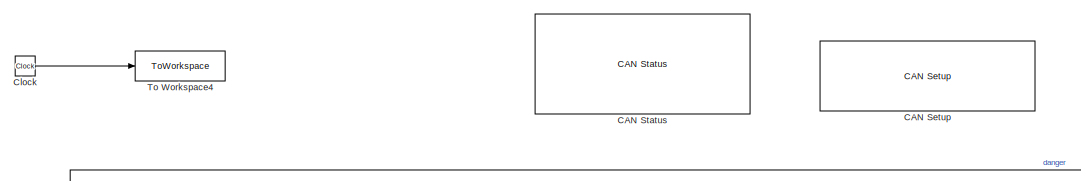
[diagram: root canvas - part 1/4, top center region]
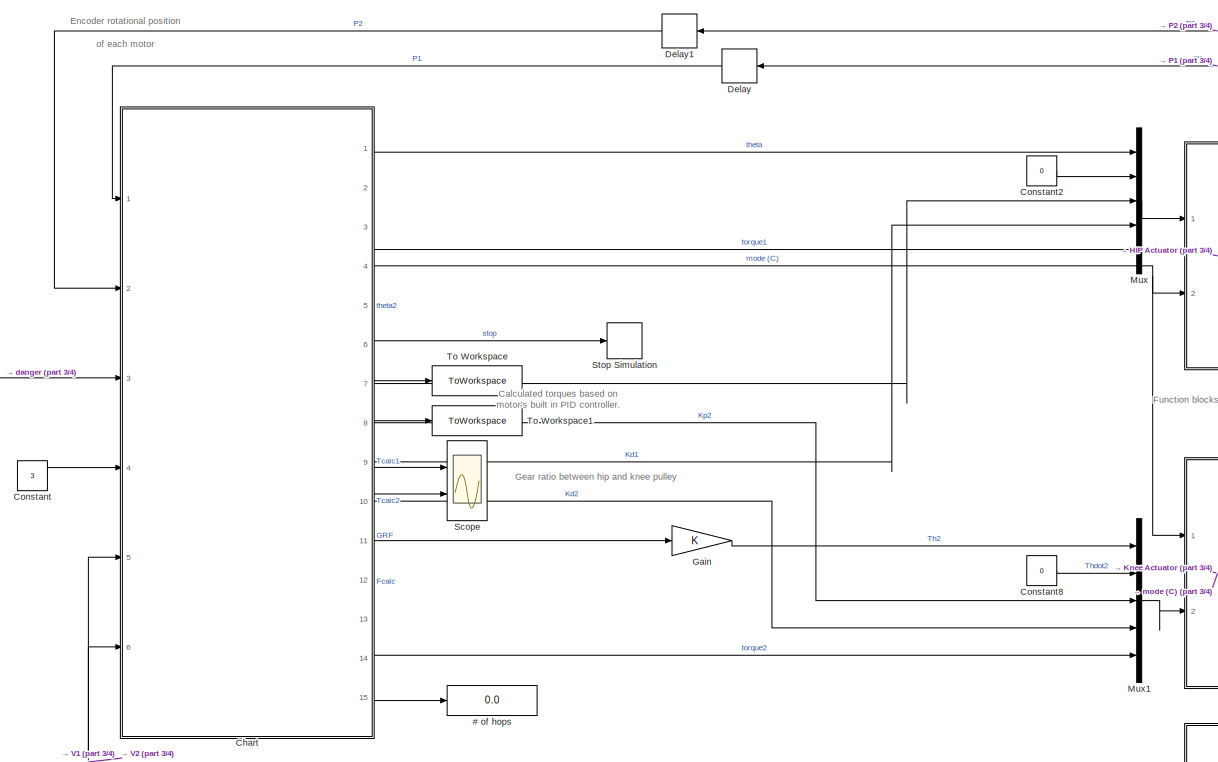
[diagram: root canvas - part 2/4, central region]
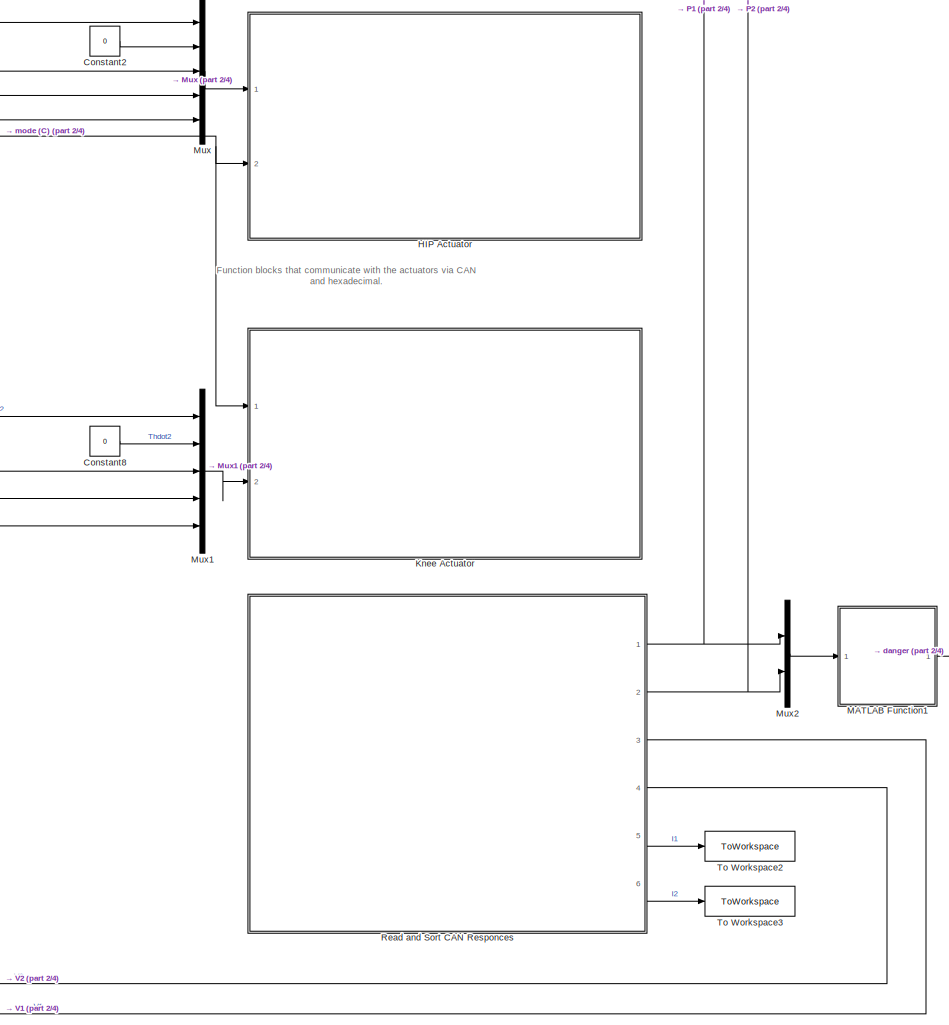
[diagram: root canvas - part 3/4, right side, full height]
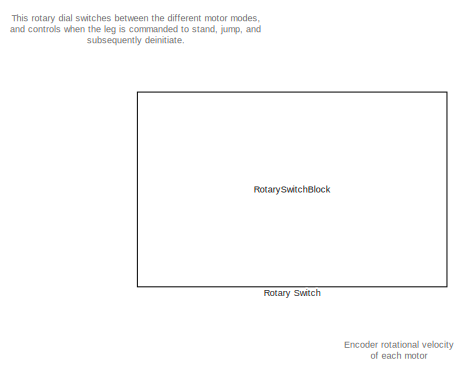
[diagram: root canvas - part 4/4, middle left region]
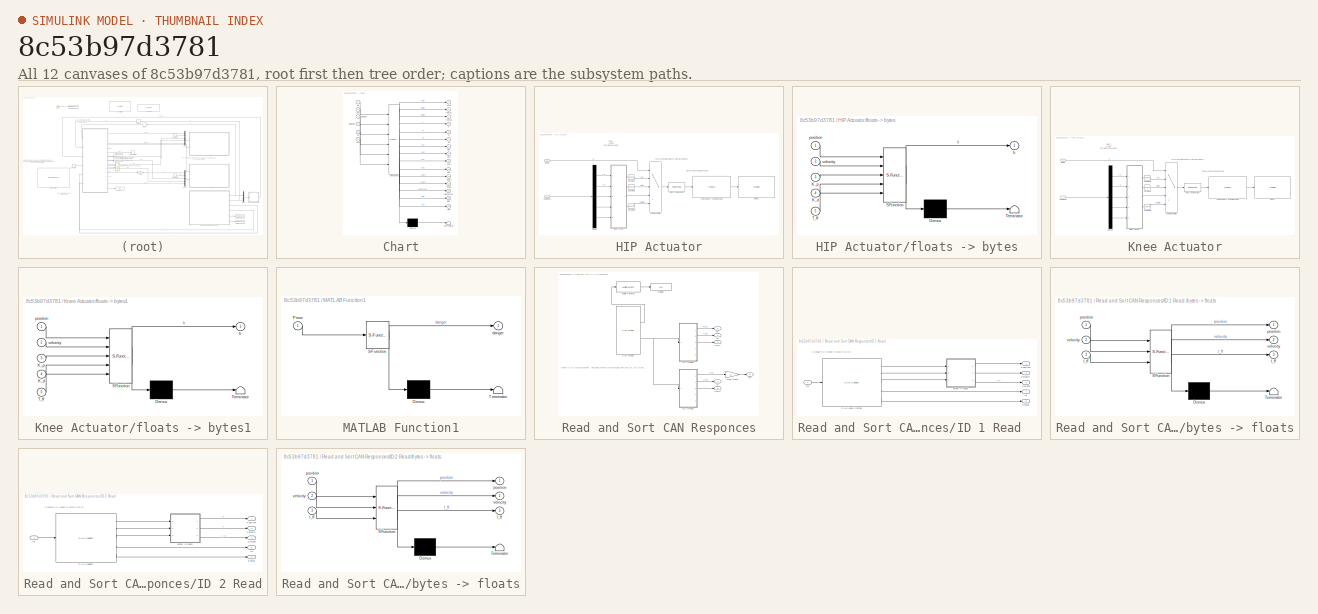
[diagram: thumbnail index - all 12 canvases of the model, root first then tree order]
MODEL slx_8c53b97d3781
KIND model
CONFIG AbsTol = auto
CONFIG EnableMultiTasking = off
CONFIG FixedStep = 0.001
CONFIG MaxStep = auto
CONFIG MinStep = auto
CONFIG RelTol = 1e-3
CONFIG SampleTimeConstraint = Unconstrained
CONFIG SolverName = FixedStepAuto
CONFIG StartTime = 0.0
CONFIG StopTime = inf
BLOCK [Display] # of hops
  Decimation = 1
  Ports = [1]
BLOCK [Reference] CAN Setup   REF=speedgoatlib_IO691/CAN Setup 
  Ports = []
  SourceBlock = speedgoatlib_IO691/CAN Setup
  SourceProductName = Simulink Real-Time: Speedgoat I/O Blockset
  SourceType = setup_IO691
BLOCK [Reference] CAN Status  REF=speedgoatlib_IO691/CAN Status
  Ports = []
  SourceBlock = speedgoatlib_IO691/CAN Status
  SourceProductName = Simulink Real-Time: Speedgoat I/O Blockset
  SourceType = status_IO691
  UserDataPersistent = on
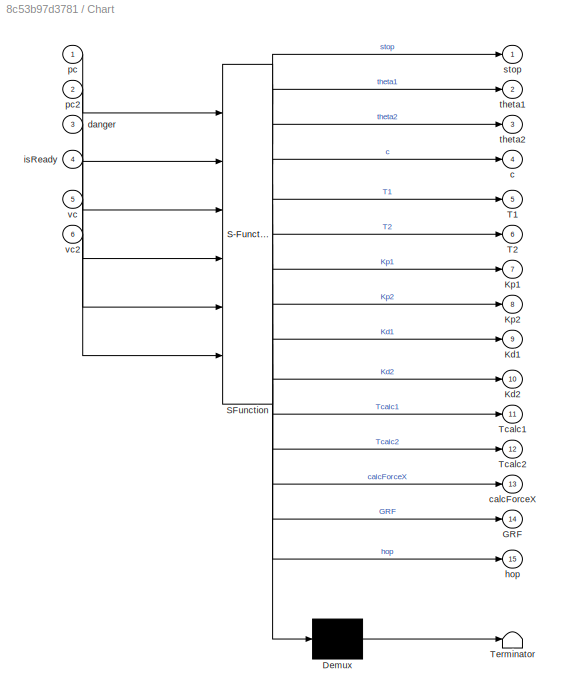
BLOCK [SubSystem] Chart
  ErrorFcn = Stateflow.Translate.translate
  PermitHierarchicalResolution = ExplicitOnly
  PortSchema = {"entries":[{"content":{"sides":[{"content":{"connectorIds":["In1","In2","In3","In4","In5","In6"]},"type":"ConnectorPlacement.EquallySpacedRectSide","uuid":"09499f21-f50c-4ce4-914e-8b9942bcc246"},{"content":{"connectorIds":["Out2","Out7","Out9","Out5","Out4","Out1","Out11","Out12","Out13","Out14","Out3","Out8","Out10","Out6","Out15"],"side":"RIGHT"},"type":"ConnectorPlacement.EquallySpacedRectSide...<+374ch>
  Ports = [6, 15]
  RequestExecContextInheritance = off
  SFBlockType = Chart
  TreatAsAtomicUnit = on
BLOCK [Demux] Chart/ Demux 
  Outputs = 1
  Ports = [1, 1]
BLOCK [S-Function] Chart/ SFunction 
  EnableBusSupport = on
  FunctionName = sf_sfun
  PortCounts = [6 16]
  Ports = [6, 16]
  SFcnIsStateOwnerBlock = off
  SFunctionDeploymentMode = off
  Tag = Stateflow S-Function 8
BLOCK [Terminator] Chart/ Terminator 
BLOCK [Outport] Chart/GRF
  Port = 14
BLOCK [Outport] Chart/Kd1
  Port = 9
BLOCK [Outport] Chart/Kd2
  Port = 10
BLOCK [Outport] Chart/Kp1
  Port = 7
BLOCK [Outport] Chart/Kp2
  Port = 8
BLOCK [Outport] Chart/T1
  Port = 5
BLOCK [Outport] Chart/T2
  Port = 6
BLOCK [Outport] Chart/Tcalc1
  Port = 11
BLOCK [Outport] Chart/Tcalc2
  Port = 12
BLOCK [Outport] Chart/c
  Port = 4
BLOCK [Outport] Chart/calcForceX
  Port = 13
BLOCK [Inport] Chart/danger
  Port = 3
BLOCK [Outport] Chart/hop
  Port = 15
BLOCK [Inport] Chart/isReady
  Port = 4
BLOCK [Inport] Chart/pc
BLOCK [Inport] Chart/pc2
  Port = 2
BLOCK [Outport] Chart/stop
BLOCK [Outport] Chart/theta1
  Port = 2
BLOCK [Outport] Chart/theta2
  Port = 3
BLOCK [Inport] Chart/vc
  Port = 5
BLOCK [Inport] Chart/vc2
  Port = 6
BLOCK [Clock] Clock
BLOCK [Constant] Constant
  Value = 3
BLOCK [Constant] Constant2
  Value = 0
BLOCK [Constant] Constant8
  Value = 0
BLOCK [Delay] Delay
  DelayLength = 1
  InputPortMap = u0
  Ports = [1, 1]
BLOCK [Delay] Delay1
  DelayLength = 1
  InputPortMap = u0
  Ports = [1, 1]
BLOCK [Gain] Gain
BLOCK [SubSystem] HIP Actuator
  Ports = [2]
  RequestExecContextInheritance = off
  TreatAsAtomicUnit = on
BLOCK [Inport] HIP Actuator/Command
BLOCK [MultiPortSwitch] HIP Actuator/Command Switch
  DiagnosticForDefault = None
  InputSameDT = off
  Inputs = 4
  Ports = [5, 1]
  SaturateOnIntegerOverflow = off
BLOCK [Constant] HIP Actuator/Constant
  Value = [0xFF, 0xFF, 0xFF, 0xFF, 0xFF, 0xFF, 0xFF, 0xFE]
BLOCK [Constant] HIP Actuator/Constant1
  Value = [0xFF, 0xFF, 0xFF, 0xFF, 0xFF, 0xFF, 0xFF, 0xFC]
BLOCK [Constant] HIP Actuator/Constant2
  Value = [0xFF, 0xFF, 0xFF, 0xFF, 0xFF, 0xFF, 0xFF, 0xFD]
BLOCK [Demux] HIP Actuator/Demux
  Outputs = 5
  Ports = [1, 5]
BLOCK [Inport] HIP Actuator/Mode
  Port = 2
BLOCK [Reference] HIP Actuator/Motor 1  REF=speedgoatlib_IO691/CAN Write
  Ports = [1]
  SourceBlock = speedgoatlib_IO691/CAN Write
  SourceProductName = Simulink Real-Time: Speedgoat I/O Blockset
  SourceType = write_IO691
BLOCK [Reference] HIP Actuator/bytes -> byte vectors  REF=slrealtimeutilitieslib/Byte Packing
  Ports = [1, 1]
  SourceBlock = slrealtimeutilitieslib/Byte Packing
  SourceProductBaseCode = XP
  SourceType = slrealtimebytepacking
BLOCK [Reference] HIP Actuator/bytes vectors -> can message  REF=canmsglib/CAN Pack
  Ports = [1, 1]
  SourceBlock = canmsglib/CAN Pack
  SourceProductBaseCode = ME,XP,VN
  SourceType = CAN Pack
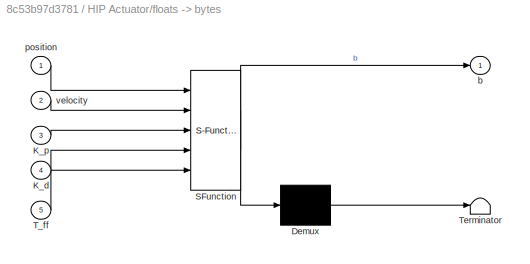
BLOCK [SubSystem] HIP Actuator/floats -> bytes
  ErrorFcn = Stateflow.Translate.translate
  PermitHierarchicalResolution = ExplicitOnly
  Ports = [5, 1]
  RequestExecContextInheritance = off
  SFBlockType = MATLAB Function
  TreatAsAtomicUnit = on
BLOCK [Demux] HIP Actuator/floats -> bytes/ Demux 
  Outputs = 1
  Ports = [1, 1]
BLOCK [S-Function] HIP Actuator/floats -> bytes/ SFunction 
  EnableBusSupport = on
  FunctionName = sf_sfun
  PortCounts = [5 2]
  Ports = [5, 2]
  SFcnIsStateOwnerBlock = off
  SFunctionDeploymentMode = off
  Tag = Stateflow S-Function 5
BLOCK [Terminator] HIP Actuator/floats -> bytes/ Terminator 
BLOCK [Inport] HIP Actuator/floats -> bytes/K_d
  Port = 4
BLOCK [Inport] HIP Actuator/floats -> bytes/K_p
  Port = 3
BLOCK [Inport] HIP Actuator/floats -> bytes/T_ff
  Port = 5
BLOCK [Outport] HIP Actuator/floats -> bytes/b
BLOCK [Inport] HIP Actuator/floats -> bytes/position
BLOCK [Inport] HIP Actuator/floats -> bytes/velocity
  Port = 2
BLOCK [SubSystem] Knee Actuator
  Ports = [2]
  RequestExecContextInheritance = off
  TreatAsAtomicUnit = on
BLOCK [Inport] Knee Actuator/Command
  Port = 2
BLOCK [MultiPortSwitch] Knee Actuator/Command Switch
  DiagnosticForDefault = None
  InputSameDT = off
  Inputs = 4
  Ports = [5, 1]
  SaturateOnIntegerOverflow = off
BLOCK [Constant] Knee Actuator/Constant3
  Value = [0xFF, 0xFF, 0xFF, 0xFF, 0xFF, 0xFF, 0xFF, 0xFE]
BLOCK [Constant] Knee Actuator/Constant4
  Value = [0xFF, 0xFF, 0xFF, 0xFF, 0xFF, 0xFF, 0xFF, 0xFC]
BLOCK [Constant] Knee Actuator/Constant5
  Value = [0xFF, 0xFF, 0xFF, 0xFF, 0xFF, 0xFF, 0xFF, 0xFD]
BLOCK [Demux] Knee Actuator/Demux1
  Outputs = 5
  Ports = [1, 5]
BLOCK [Inport] Knee Actuator/Mode
BLOCK [Reference] Knee Actuator/Motor 2  REF=speedgoatlib_IO691/CAN Write
  Ports = [1]
  SourceBlock = speedgoatlib_IO691/CAN Write
  SourceProductName = Simulink Real-Time: Speedgoat I/O Blockset
  SourceType = write_IO691
BLOCK [Reference] Knee Actuator/bytes -> byte vectors  REF=slrealtimeutilitieslib/Byte Packing
  Ports = [1, 1]
  SourceBlock = slrealtimeutilitieslib/Byte Packing
  SourceProductBaseCode = XP
  SourceType = slrealtimebytepacking
BLOCK [Reference] Knee Actuator/bytes vectors -> can message  REF=canmsglib/CAN Pack
  Ports = [1, 1]
  SourceBlock = canmsglib/CAN Pack
  SourceProductBaseCode = ME,XP,VN
  SourceType = CAN Pack
BLOCK [SubSystem] Knee Actuator/floats -> bytes1
  ErrorFcn = Stateflow.Translate.translate
  PermitHierarchicalResolution = ExplicitOnly
  Ports = [5, 1]
  RequestExecContextInheritance = off
  SFBlockType = MATLAB Function
  TreatAsAtomicUnit = on
BLOCK [Demux] Knee Actuator/floats -> bytes1/ Demux 
  Outputs = 1
  Ports = [1, 1]
BLOCK [S-Function] Knee Actuator/floats -> bytes1/ SFunction 
  EnableBusSupport = on
  FunctionName = sf_sfun
  PortCounts = [5 2]
  Ports = [5, 2]
  SFcnIsStateOwnerBlock = off
  SFunctionDeploymentMode = off
  Tag = Stateflow S-Function 4
BLOCK [Terminator] Knee Actuator/floats -> bytes1/ Terminator 
BLOCK [Inport] Knee Actuator/floats -> bytes1/K_d
  Port = 4
BLOCK [Inport] Knee Actuator/floats -> bytes1/K_p
  Port = 3
BLOCK [Inport] Knee Actuator/floats -> bytes1/T_ff
  Port = 5
BLOCK [Outport] Knee Actuator/floats -> bytes1/b
BLOCK [Inport] Knee Actuator/floats -> bytes1/position
BLOCK [Inport] Knee Actuator/floats -> bytes1/velocity
  Port = 2
BLOCK [SubSystem] MATLAB Function1
  ErrorFcn = Stateflow.Translate.translate
  PermitHierarchicalResolution = ExplicitOnly
  Ports = [1, 1]
  RequestExecContextInheritance = off
  SFBlockType = MATLAB Function
  TreatAsAtomicUnit = on
BLOCK [Demux] MATLAB Function1/ Demux 
  Outputs = 1
  Ports = [1, 1]
BLOCK [S-Function] MATLAB Function1/ SFunction 
  EnableBusSupport = on
  FunctionName = sf_sfun
  PortCounts = [1 2]
  Ports = [1, 2]
  SFcnIsStateOwnerBlock = off
  SFunctionDeploymentMode = off
  Tag = Stateflow S-Function 6
BLOCK [Terminator] MATLAB Function1/ Terminator 
BLOCK [Inport] MATLAB Function1/Pmux
BLOCK [Outport] MATLAB Function1/danger
BLOCK [Mux] Mux
  DisplayOption = bar
  Inputs = 5
  Ports = [5, 1]
BLOCK [Mux] Mux1
  DisplayOption = bar
  Inputs = 5
  Ports = [5, 1]
BLOCK [Mux] Mux2
  DisplayOption = bar
  Inputs = 2
  Ports = [2, 1]
BLOCK [SubSystem] Read and Sort CAN Responces
  Ports = [0, 6]
  RequestExecContextInheritance = off
  TreatAsAtomicUnit = on
BLOCK [Reference] Read and Sort CAN Responces/CAN Read  REF=speedgoatlib_IO691/CAN Read
  Ports = [0, 2]
  SourceBlock = speedgoatlib_IO691/CAN Read
  SourceProductName = Simulink Real-Time: Speedgoat I/O Blockset
  SourceType = read_IO691
BLOCK [Outport] Read and Sort CAN Responces/Curr1
  Port = 5
BLOCK [Outport] Read and Sort CAN Responces/Curr2
  Port = 6
BLOCK [Display] Read and Sort CAN Responces/Display
  Decimation = 1
  Ports = [1]
BLOCK [Gain] Read and Sort CAN Responces/Gear Ratio
BLOCK [SubSystem] Read and Sort CAN Responces/ID 1 Read  
  Ports = [1, 5]
  RequestExecContextInheritance = off
  TreatAsAtomicUnit = on
BLOCK [Reference] Read and Sort CAN Responces/ID 1 Read  /CAN Msg -> bytes  REF=canmsglib/CAN Unpack
  Ports = [1, 5]
  SourceBlock = canmsglib/CAN Unpack
  SourceProductBaseCode = ME,XP,VN
  SourceType = CAN Unpack
BLOCK [Outport] Read and Sort CAN Responces/ID 1 Read  /Current
  Port = 3
BLOCK [Outport] Read and Sort CAN Responces/ID 1 Read  /ID
  Port = 4
BLOCK [Inport] Read and Sort CAN Responces/ID 1 Read  /In1
BLOCK [Outport] Read and Sort CAN Responces/ID 1 Read  /Position
BLOCK [Outport] Read and Sort CAN Responces/ID 1 Read  /Status
  Port = 5
BLOCK [Outport] Read and Sort CAN Responces/ID 1 Read  /Velocity
  Port = 2
BLOCK [SubSystem] Read and Sort CAN Responces/ID 1 Read  /bytes -> floats
  ErrorFcn = Stateflow.Translate.translate
  PermitHierarchicalResolution = ExplicitOnly
  Ports = [3, 3]
  RequestExecContextInheritance = off
  SFBlockType = MATLAB Function
  TreatAsAtomicUnit = on
BLOCK [Demux] Read and Sort CAN Responces/ID 1 Read  /bytes -> floats/ Demux 
  Outputs = 1
  Ports = [1, 1]
BLOCK [S-Function] Read and Sort CAN Responces/ID 1 Read  /bytes -> floats/ SFunction 
  EnableBusSupport = on
  FunctionName = sf_sfun
  PortCounts = [3 4]
  Ports = [3, 4]
  SFcnIsStateOwnerBlock = off
  SFunctionDeploymentMode = off
  Tag = Stateflow S-Function 2
BLOCK [Terminator] Read and Sort CAN Responces/ID 1 Read  /bytes -> floats/ Terminator 
BLOCK [Outport] Read and Sort CAN Responces/ID 1 Read  /bytes -> floats/I_ff
  Port = 3
BLOCK [Inport] Read and Sort CAN Responces/ID 1 Read  /bytes -> floats/I_ff 
  Port = 3
BLOCK [Outport] Read and Sort CAN Responces/ID 1 Read  /bytes -> floats/position
BLOCK [Inport] Read and Sort CAN Responces/ID 1 Read  /bytes -> floats/position 
BLOCK [Outport] Read and Sort CAN Responces/ID 1 Read  /bytes -> floats/velocity
  Port = 2
BLOCK [Inport] Read and Sort CAN Responces/ID 1 Read  /bytes -> floats/velocity 
  Port = 2
BLOCK [SubSystem] Read and Sort CAN Responces/ID 2 Read
  Ports = [1, 5]
  RequestExecContextInheritance = off
  TreatAsAtomicUnit = on
BLOCK [Reference] Read and Sort CAN Responces/ID 2 Read/CAN Unpack  REF=canmsglib/CAN Unpack
  Ports = [1, 5]
  SourceBlock = canmsglib/CAN Unpack
  SourceProductBaseCode = ME,XP,VN
  SourceType = CAN Unpack
BLOCK [Outport] Read and Sort CAN Responces/ID 2 Read/Current
  Port = 3
BLOCK [Outport] Read and Sort CAN Responces/ID 2 Read/ID
  Port = 4
BLOCK [Inport] Read and Sort CAN Responces/ID 2 Read/In1
BLOCK [Outport] Read and Sort CAN Responces/ID 2 Read/Position
BLOCK [Outport] Read and Sort CAN Responces/ID 2 Read/Status
  Port = 5
BLOCK [Outport] Read and Sort CAN Responces/ID 2 Read/Velocity
  Port = 2
BLOCK [SubSystem] Read and Sort CAN Responces/ID 2 Read/bytes -> floats
  ErrorFcn = Stateflow.Translate.translate
  PermitHierarchicalResolution = ExplicitOnly
  Ports = [3, 3]
  RequestExecContextInheritance = off
  SFBlockType = MATLAB Function
  TreatAsAtomicUnit = on
BLOCK [Demux] Read and Sort CAN Responces/ID 2 Read/bytes -> floats/ Demux 
  Outputs = 1
  Ports = [1, 1]
BLOCK [S-Function] Read and Sort CAN Responces/ID 2 Read/bytes -> floats/ SFunction 
  EnableBusSupport = on
  FunctionName = sf_sfun
  PortCounts = [3 4]
  Ports = [3, 4]
  SFcnIsStateOwnerBlock = off
  SFunctionDeploymentMode = off
  Tag = Stateflow S-Function 1
BLOCK [Terminator] Read and Sort CAN Responces/ID 2 Read/bytes -> floats/ Terminator 
BLOCK [Outport] Read and Sort CAN Responces/ID 2 Read/bytes -> floats/I_ff
  Port = 3
BLOCK [Inport] Read and Sort CAN Responces/ID 2 Read/bytes -> floats/I_ff 
  Port = 3
BLOCK [Outport] Read and Sort CAN Responces/ID 2 Read/bytes -> floats/position
BLOCK [Inport] Read and Sort CAN Responces/ID 2 Read/bytes -> floats/position 
BLOCK [Outport] Read and Sort CAN Responces/ID 2 Read/bytes -> floats/velocity
  Port = 2
BLOCK [Inport] Read and Sort CAN Responces/ID 2 Read/bytes -> floats/velocity 
  Port = 2
BLOCK [Outport] Read and Sort CAN Responces/P1
BLOCK [Outport] Read and Sort CAN Responces/P2
  Port = 2
BLOCK [Outport] Read and Sort CAN Responces/V1
  Port = 3
BLOCK [Outport] Read and Sort CAN Responces/V2
  Port = 4
BLOCK [WhileIterator] Read and Sort CAN Responces/While Iterator
  MaxIters = -1
  Ports = [1, 1]
  ResetStates = reset
  ShowIterationPort = on
  WhileBlockType = do-while
BLOCK [RotarySwitchBlock] Rotary Switch
BLOCK [Scope] Scope
  Floating = off
  NumInputPorts = 2
  Ports = [2]
  ScopeSpecificationString = Simulink.scopes.TimeScopeBlockCfg('CurrentConfiguration', extmgr.ConfigurationSet(extmgr.Configuration('Core','General UI',true),extmgr.Configuration('Core','Source UI',true),extmgr.Configuration('Sources','WiredSimulink',true),extmgr.Configuration('Visuals','Time Domain',true,'SerializedDisplays',{struct('MinYLimReal','-1.00000','MaxYLimReal','1.00000','YLabelReal','','MinYLimMag','0.00000','MaxY...<+1342ch>
BLOCK [Stop] Stop Simulation
BLOCK [ToWorkspace] To Workspace
  FixptAsFi = on
  MaxDataPoints = inf
  Ports = [1]
  SampleTime = -1
  VariableName = Tcalc1
BLOCK [ToWorkspace] To Workspace1
  FixptAsFi = on
  MaxDataPoints = inf
  Ports = [1]
  SampleTime = -1
  VariableName = Tcalc2
BLOCK [ToWorkspace] To Workspace2
  FixptAsFi = on
  MaxDataPoints = inf
  Ports = [1]
  SampleTime = -1
  VariableName = curr1
BLOCK [ToWorkspace] To Workspace3
  FixptAsFi = on
  MaxDataPoints = inf
  Ports = [1]
  SampleTime = -1
  VariableName = curr2
BLOCK [ToWorkspace] To Workspace4
  FixptAsFi = on
  MaxDataPoints = inf
  Ports = [1]
  SampleTime = -1
  VariableName = timeout
ANNOTATION (root): Calculated torques based on motor's built in PID controller.
ANNOTATION (root): Encoder rotational position of each motor
ANNOTATION (root): Encoder rotational velocity of each motor
ANNOTATION (root): Function blocks that communicate with the actuators via CAN and hexadecimal.
ANNOTATION (root): Gear ratio between hip and knee pulley
ANNOTATION (root): This rotary dial switches between the different motor modes, and controls when the leg is commanded to stand, jump, and subsequently deinitiate.
ANNOTATION HIP Actuator: Motor 1 CAN ID: 1 Discription: Hip Actuator
ANNOTATION HIP Actuator: Converts inputted data to an 8-bit unsigned integer
ANNOTATION HIP Actuator: Standard ID Needs to Match Can ID
ANNOTATION Knee Actuator: Motor 2 CAN ID: 2 Discription: Knee Actuator
ANNOTATION Knee Actuator: Converts inputted data to an 8-bit unsigned integer
ANNOTATION Knee Actuator: Standard ID Needs to Match Can ID
ANNOTATION Read and Sort CAN Responces: When a CAN Msg is present. This block shares the message with all CAN IDs to be read and interpreted. The ID indicates which actuator the data corrolates too
ANNOTATION Read and Sort CAN Responces/ID 1 Read  : Standard ID Needs to Match Can ID
ANNOTATION Read and Sort CAN Responces/ID 2 Read: Standard ID Needs to Match Can ID
LINE Chart:1 -> Stop Simulation:1
LINE Chart:10 -> Mux1:4
LINE Chart:11 -> To Workspace:1
LINE Chart:12 -> To Workspace1:1
LINE Chart:13 -> Scope:1
LINE Chart:14 -> Scope:2
LINE Chart:15 -> # of hops:1
LINE Chart:2 -> Mux:1
LINE Chart:3 -> Gain:1
NET Chart:4 -> HIP Actuator:2, Knee Actuator:1
LINE Chart:5 -> Mux:5
LINE Chart:6 -> Mux1:5
LINE Chart:7 -> Mux:3
LINE Chart:8 -> Mux1:3
LINE Chart:9 -> Mux:4
LINE Clock:1 -> To Workspace4:1
LINE Constant2:1 -> Mux:2
LINE Constant8:1 -> Mux1:2
LINE Constant:1 -> Chart:4
LINE Delay1:1 -> Chart:2
LINE Delay:1 -> Chart:1
LINE Gain:1 -> Mux1:1
LINE HIP Actuator/Command Switch:1 -> HIP Actuator/bytes -> byte vectors:1
LINE HIP Actuator/Command:1 -> HIP Actuator/Demux:1
LINE HIP Actuator/Constant1:1 -> HIP Actuator/Command Switch:3
LINE HIP Actuator/Constant2:1 -> HIP Actuator/Command Switch:5
LINE HIP Actuator/Constant:1 -> HIP Actuator/Command Switch:2
LINE HIP Actuator/Demux:1 -> HIP Actuator/floats -> bytes:1
LINE HIP Actuator/Demux:2 -> HIP Actuator/floats -> bytes:2
LINE HIP Actuator/Demux:3 -> HIP Actuator/floats -> bytes:3
LINE HIP Actuator/Demux:4 -> HIP Actuator/floats -> bytes:4
LINE HIP Actuator/Demux:5 -> HIP Actuator/floats -> bytes:5
LINE HIP Actuator/Mode:1 -> HIP Actuator/Command Switch:1
LINE HIP Actuator/bytes -> byte vectors:1 -> HIP Actuator/bytes vectors -> can message:1
LINE HIP Actuator/bytes vectors -> can message:1 -> HIP Actuator/Motor 1:1
LINE HIP Actuator/floats -> bytes:1 -> HIP Actuator/Command Switch:4
LINE Knee Actuator/Command Switch:1 -> Knee Actuator/bytes -> byte vectors:1
LINE Knee Actuator/Command:1 -> Knee Actuator/Demux1:1
LINE Knee Actuator/Constant3:1 -> Knee Actuator/Command Switch:2
LINE Knee Actuator/Constant4:1 -> Knee Actuator/Command Switch:3
LINE Knee Actuator/Constant5:1 -> Knee Actuator/Command Switch:5
LINE Knee Actuator/Demux1:1 -> Knee Actuator/floats -> bytes1:1
LINE Knee Actuator/Demux1:2 -> Knee Actuator/floats -> bytes1:2
LINE Knee Actuator/Demux1:3 -> Knee Actuator/floats -> bytes1:3
LINE Knee Actuator/Demux1:4 -> Knee Actuator/floats -> bytes1:4
LINE Knee Actuator/Demux1:5 -> Knee Actuator/floats -> bytes1:5
LINE Knee Actuator/Mode:1 -> Knee Actuator/Command Switch:1
LINE Knee Actuator/bytes -> byte vectors:1 -> Knee Actuator/bytes vectors -> can message:1
LINE Knee Actuator/bytes vectors -> can message:1 -> Knee Actuator/Motor 2:1
LINE Knee Actuator/floats -> bytes1:1 -> Knee Actuator/Command Switch:4
LINE MATLAB Function1:1 -> Chart:3
LINE Mux1:1 -> Knee Actuator:2
LINE Mux2:1 -> MATLAB Function1:1
LINE Mux:1 -> HIP Actuator:1
LINE Read and Sort CAN Responces/CAN Read:1 -> Read and Sort CAN Responces/While Iterator:1
NET Read and Sort CAN Responces/CAN Read:2 -> Read and Sort CAN Responces/ID 1 Read  :1, Read and Sort CAN Responces/ID 2 Read:1
LINE Read and Sort CAN Responces/Gear Ratio:1 -> Read and Sort CAN Responces/P2:1
LINE Read and Sort CAN Responces/ID 1 Read  /CAN Msg -> bytes:1 -> Read and Sort CAN Responces/ID 1 Read  /bytes -> floats:1
LINE Read and Sort CAN Responces/ID 1 Read  /CAN Msg -> bytes:2 -> Read and Sort CAN Responces/ID 1 Read  /bytes -> floats:2
LINE Read and Sort CAN Responces/ID 1 Read  /CAN Msg -> bytes:3 -> Read and Sort CAN Responces/ID 1 Read  /bytes -> floats:3
LINE Read and Sort CAN Responces/ID 1 Read  /CAN Msg -> bytes:4 -> Read and Sort CAN Responces/ID 1 Read  /ID:1
LINE Read and Sort CAN Responces/ID 1 Read  /CAN Msg -> bytes:5 -> Read and Sort CAN Responces/ID 1 Read  /Status:1
LINE Read and Sort CAN Responces/ID 1 Read  /In1:1 -> Read and Sort CAN Responces/ID 1 Read  /CAN Msg -> bytes:1
LINE Read and Sort CAN Responces/ID 1 Read  /bytes -> floats:1 -> Read and Sort CAN Responces/ID 1 Read  /Position:1
LINE Read and Sort CAN Responces/ID 1 Read  /bytes -> floats:2 -> Read and Sort CAN Responces/ID 1 Read  /Velocity:1
LINE Read and Sort CAN Responces/ID 1 Read  /bytes -> floats:3 -> Read and Sort CAN Responces/ID 1 Read  /Current:1
LINE Read and Sort CAN Responces/ID 1 Read  :1 -> Read and Sort CAN Responces/P1:1
LINE Read and Sort CAN Responces/ID 1 Read  :2 -> Read and Sort CAN Responces/V1:1
LINE Read and Sort CAN Responces/ID 1 Read  :3 -> Read and Sort CAN Responces/Curr1:1
LINE Read and Sort CAN Responces/ID 2 Read/CAN Unpack:1 -> Read and Sort CAN Responces/ID 2 Read/bytes -> floats:1
LINE Read and Sort CAN Responces/ID 2 Read/CAN Unpack:2 -> Read and Sort CAN Responces/ID 2 Read/bytes -> floats:2
LINE Read and Sort CAN Responces/ID 2 Read/CAN Unpack:3 -> Read and Sort CAN Responces/ID 2 Read/bytes -> floats:3
LINE Read and Sort CAN Responces/ID 2 Read/CAN Unpack:4 -> Read and Sort CAN Responces/ID 2 Read/ID:1
LINE Read and Sort CAN Responces/ID 2 Read/CAN Unpack:5 -> Read and Sort CAN Responces/ID 2 Read/Status:1
LINE Read and Sort CAN Responces/ID 2 Read/In1:1 -> Read and Sort CAN Responces/ID 2 Read/CAN Unpack:1
LINE Read and Sort CAN Responces/ID 2 Read/bytes -> floats:1 -> Read and Sort CAN Responces/ID 2 Read/Position:1
LINE Read and Sort CAN Responces/ID 2 Read/bytes -> floats:2 -> Read and Sort CAN Responces/ID 2 Read/Velocity:1
LINE Read and Sort CAN Responces/ID 2 Read/bytes -> floats:3 -> Read and Sort CAN Responces/ID 2 Read/Current:1
LINE Read and Sort CAN Responces/ID 2 Read:1 -> Read and Sort CAN Responces/Gear Ratio:1
LINE Read and Sort CAN Responces/ID 2 Read:2 -> Read and Sort CAN Responces/V2:1
LINE Read and Sort CAN Responces/ID 2 Read:3 -> Read and Sort CAN Responces/Curr2:1
LINE Read and Sort CAN Responces/While Iterator:1 -> Read and Sort CAN Responces/Display:1
NET Read and Sort CAN Responces:1 -> Delay:1, Mux2:1
NET Read and Sort CAN Responces:2 -> Delay1:1, Mux2:2
LINE Read and Sort CAN Responces:3 -> Chart:5
LINE Read and Sort CAN Responces:4 -> Chart:6
LINE Read and Sort CAN Responces:5 -> To Workspace2:1
LINE Read and Sort CAN Responces:6 -> To Workspace3:1
note: NET lines group one-source signal fan-out (src -> all destinations, sorted); 1:1 wires keep LINE
CHART Read and Sort CAN Responces/ID 2 Read/bytes -> floats states=1 transitions=1
  STATE_LABEL 'eML_blk_kernel()'
  STATE_LABEL 'SCRIPT:\nfunction [position, velocity, I_ff] = fcn(position, velocity, I_ff)\n\nP_MIN  =-95.5;  % [rad]\nP_MAX  = 95.5;  % [rad]\nV_MIN  =-45;    % [rad/s]\nV_MAX  = 45;    % [rad/s]\nI_MIN  =-40;    % []\nI_MAX  = 40;    % []\n\nposition = position*(P_MAX  - P_MIN)/65535+ P_MIN;\nvelocity = velocity*(V_MAX  - V_MIN)/4095 + V_MIN;\nI_ff     = I_ff*(I_MAX  - I_MIN)/4095 + I_MIN;'
CHART Read and Sort CAN Responces/ID 1 Read  /bytes -> floats states=1 transitions=1
  STATE_LABEL 'eML_blk_kernel()'
  STATE_LABEL 'SCRIPT:\nfunction [position, velocity, I_ff] = fcn(position, velocity, I_ff)\n\nP_MIN  =-95.5;  % [rad]\nP_MAX  = 95.5;  % [rad]\nV_MIN  =-45;    % [rad/s]\nV_MAX  = 45;    % [rad/s]\nI_MIN  =-40;    % []\nI_MAX  = 40;    % []\n\nposition = position*(P_MAX  - P_MIN)/65535+ P_MIN;\nvelocity = velocity*(V_MAX  - V_MIN)/4095 + V_MIN;\nI_ff     = I_ff*(I_MAX  - I_MIN)/4095 + I_MIN;'
CHART Knee Actuator/floats -> bytes1 states=1 transitions=1
  STATE_LABEL 'eML_blk_kernel()'
  STATE_LABEL 'SCRIPT:\nfunction b = fcn(position, velocity, K_p, K_d, T_ff)\n% Max and Min Values to be scaled\nP_MIN  =-95.5;  % [rad]\nP_MAX  = 95.5;  % [rad]\nV_MIN  =-45;    % [rad/s] 30 to 45\nV_MAX  = 45;    % [rad/s]\nKP_MIN = 0;     % [Nm/rad]\nKP_MAX = 500;   % [Nm/rad]\nKD_MIN = 0;     % [Nm*s/rad\nKD_MAX = 5;     % [Nm*s/rad\nT_MIN  =-18;    % [Nm]\nT_MAX  = 18;    % [Nm]\n\n% Convert into unsigned integers\npositi...<+1083ch>'
CHART HIP Actuator/floats -> bytes states=1 transitions=1
  STATE_LABEL 'eML_blk_kernel()'
  STATE_LABEL 'SCRIPT:\nfunction b = fcn(position, velocity, K_p, K_d, T_ff)\n% Max and Min Values to be scaled\nP_MIN  =-95.5;  % [rad]\nP_MAX  = 95.5;  % [rad]\nV_MIN  =-45;    % [rad/s] 30 to 45\nV_MAX  = 45;    % [rad/s]\nKP_MIN = 0;     % [Nm/rad]\nKP_MAX = 500;   % [Nm/rad]\nKD_MIN = 0;     % [Nm*s/rad\nKD_MAX = 5;     % [Nm*s/rad\nT_MIN  =-18;    % [Nm]\nT_MAX  = 18;    % [Nm]\n\n% Convert into unsigned integers\npositi...<+1086ch>'
CHART MATLAB Function1 states=1 transitions=1
  STATE_LABEL 'eML_blk_kernel()'
  STATE_LABEL 'SCRIPT:\nfunction danger  = isDanger(Pmux)\n    % Defines the boundry we want the legs to opperate in.\n    % If the legs go outside of this boundry this block sends a warning.\n    \n    p1Max = 2; \n    p1Min = -2;\n    p2Max = 2;\n    p2Min = -2;\n    \n    P1 = Pmux(1:2:end);\n    P2 = Pmux(2:2:end);\n       \n    danger = 0;\n    if((0<sum([P1>p1Max] + [P1<p1Min] - [P1<=-95.5])) || (0<sum([P2>p2Max] + [P2<...<+53ch>'
CHART Chart states=17 transitions=20
  STATE_LABEL 'Start'
  STATE_LABEL '<!DOCTYPE HTML PUBLIC "-//W3C//DTD HTML 4.0//EN" "http://www.w3.org/TR/REC-html40/strict.dtd">\n<html><head><meta name="qrichtext" content="1" /><style type="text/css">\np, li { white-space: pre-wrap; }\n</style></head><body align="left" style=" font-family:\'Helvetica\'; font-size:12px; font-weight:400; font-style:normal;">\n<p align="center" style=" margin-top:0px; margin-bottom:0px; margin-left:0px; ...<+163ch>'
  STATE_LABEL 'Zero\nentry:\nc = 1;'
  STATE_LABEL 'Init\nentry:\nc = 2;'
  STATE_LABEL 'Command\nentry:\nc = 3;\nduring:\nTcalc1 = getT(theta1, 0, Kp1, Kd1, T1, pc, vc);\nTcalc2 = getT(theta2, 0, Kp2, Kd2, T2, pc2, vc2);\n[GRF,calcForceX] = getF(pc, pc2,Tcalc1,Tcalc2);\n'
  STATE_LABEL 'calcTorque = getT(p,v,Kp,Kd,Tff,currP,currV)'
  STATE_LABEL 'SCRIPT:\nfunction calcTorque = getT(p,v,Kp,Kd,Tff,currP,currV)\n    calcTorque = (Kp*(p-currP) + Kd*(v - currV) + Tff);\nend\n'
  STATE_LABEL 'Stand\nentry:\nto = t;\ntstep = 3;\ntheta1 = pc;\npo1 = theta1;\nslope1 = (pf - po1)/tstep;\ntheta2 = pc2;\npo2 = theta2;\nslope2 = (Th2Th1*pf - po2)/tstep;\nduring:\ntheta1 = po1 + slope1*(t-to);\ntheta2 = po2 + slope2*(t-to);'
  STATE_LABEL '[calcF,calcFX] = getF(pos1,pos2,Tc1,Tc2)'
  STATE_LABEL "SCRIPT:\nfunction [calcF,calcFX] = getF(pos1,pos2,Tc1,Tc2)\n    L1inches = 5.3; %inches\n    L2inches = 6.36; %inches\n    L1 = L1inches * 0.0254; %meters\n    L2 = L2inches * 0.0254; %meters\n\n    J = [(L1 * cos(pos1) + L2 * cos(pos1+pos2)) (L2 * cos(pos1+pos2))\n         (-L1 * sin(pos1) - L2 * sin(pos1+pos2))  (-L2 * sin(pos1+pos2))];\n    T = [Tc1;Tc2];\n    \n    F = ((J')^-1)*T;\n\n    calcF = F(2);\n   ...<+19ch>"
  STATE_LABEL 'Idle'
  STATE_LABEL 'Flight\nentry:\nIdle = 0'
  STATE_LABEL 'ToPosition\nentry:\nKp1= 22.75;\nKp2 = 17;\nKd1= 0.95;\nKd2 = 1.45;\ntstep = .15;\nto = t;\ntheta1 = pc;\npo1 = theta1;\nslope1 = (pf - po1)/tstep;\ntheta2 = pc2;\npo2 = theta2;\nslope2 = (Th2Th1*pf - po2)/tstep;\nduring:\ntheta1 = po1 + slope1*(t-to);\ntheta2 = po2 + slope2*(t-to);'  <repeated x3 — deduplicated; at blocks: Chart>
  STATE_LABEL 'Idle1'
  STATE_LABEL '[(theta1 >= pf & slope1>0) | (theta1 <= pf & slope1<0)]'
  STATE_LABEL '[GRF>0]{Idle = 1;}'
  STATE_LABEL 'Stance\nentry:\nFStart = GRF;\nT1 = Tcalc1;\nT2 = Tcalc2;\ntime = t;\nKp1= 0;\nKp2 = 0;\nKd1= 0;\nKd2 = 0;\nexitY = 0;\nduring:\n[T1, T2, exitY] = getTorque(pc, pc2, t - time, FStart);\nexit:\nT1 = 0;\nT2 = 0;\nhop = hop + 1;\n'
  STATE_LABEL '[Torque1, Torque2, y] = getTorque(pos1, pos2, currTime, StartF)'
  STATE_LABEL 'SCRIPT:\nfunction [Torque1, Torque2, y] = getTorque(pos1, pos2, currTime, StartF)\n\nmagnitude = 150; \nf = 3.5; %Hz\nphaseShift = asin(StartF/magnitude);\ny = magnitude * sin(2*pi*f*currTime + phaseShift);% Generate Sine Wave  \ny(y<0) = 0;      % Rectified Sine Wave\n\nF = [0\n     y];\n\nL1inches = 5.3; %inches\nL2inches = 6.36; %inches\nL1 = L1inches * 0.0254; %meters\nL2 = L2inches * 0.0254; %meters\n\nJ = [(...<+211ch>'
  STATE_LABEL 'Sit\nentry:\nKp1 = 25;\nKp2 = 25;\nKd1 = 0.1;\nKd2 = 0.1;\ntstep = 3;\nto = t;\ntheta1 = pc;\npo1 = theta1;\nslope1 = (pf - po1)/tstep;\ntheta2 = pc2;\npo2 = theta2;\nslope2 = (Th2Th1*pf - po2)/tstep;\nduring:\ntheta1 = po1 + slope1*(t-to);\ntheta2 = po2 + slope2*(t-to);'
  STATE_LABEL '{pf = -0.6;}'
  STATE_LABEL '[(theta1 >= pf & slope1>0) | (theta1 <= pf & slope1<0)]\n{theta1 = pf; theta2 = theta1 * Th2Th1;}'
  STATE_LABEL '[isReady == 3]{hop = 0;}'
  STATE_LABEL 'after(3,tick) [(t-time) ~=  0 & exitY == 0]{pf = -0.6;}'
  STATE_LABEL 'after(.25, sec)[Idle == 1]%0.2 for rapid'
  STATE_LABEL '[hop == 3]{pf = -0.7;}'
  STATE_LABEL '[(theta1 >= pf & slope1>0) | (theta1 <= pf & slope1<0)]\n{theta1 = pf; theta2 = theta1 * Th2Th1; done = 1;}'
  STATE_LABEL 'calcTorque = getT(p,v,Kp,Kd,Tff,currP,currV)'
  STATE_LABEL 'SCRIPT:\nfunction calcTorque = getT(p,v,Kp,Kd,Tff,currP,currV)\n    calcTorque = (Kp*(p-currP) + Kd*(v - currV) + Tff);\nend\n'
  STATE_LABEL 'Stand\nentry:\nto = t;\ntstep = 3;\ntheta1 = pc;\npo1 = theta1;\nslope1 = (pf - po1)/tstep;\ntheta2 = pc2;\npo2 = theta2;\nslope2 = (Th2Th1*pf - po2)/tstep;\nduring:\ntheta1 = po1 + slope1*(t-to);\ntheta2 = po2 + slope2*(t-to);'
  STATE_LABEL '[calcF,calcFX] = getF(pos1,pos2,Tc1,Tc2)'
  STATE_LABEL "SCRIPT:\nfunction [calcF,calcFX] = getF(pos1,pos2,Tc1,Tc2)\n    L1inches = 5.3; %inches\n    L2inches = 6.36; %inches\n    L1 = L1inches * 0.0254; %meters\n    L2 = L2inches * 0.0254; %meters\n\n    J = [(L1 * cos(pos1) + L2 * cos(pos1+pos2)) (L2 * cos(pos1+pos2))\n         (-L1 * sin(pos1) - L2 * sin(pos1+pos2))  (-L2 * sin(pos1+pos2))];\n    T = [Tc1;Tc2];\n    \n    F = ((J')^-1)*T;\n\n    calcF = F(2);\n   ...<+19ch>"
  STATE_LABEL 'Idle'
  STATE_LABEL 'Flight\nentry:\nIdle = 0'
  STATE_LABEL 'Idle1'
  STATE_LABEL '[(theta1 >= pf & slope1>0) | (theta1 <= pf & slope1<0)]'
  STATE_LABEL '[GRF>0]{Idle = 1;}'
  STATE_LABEL 'Idle1'
CHART  states=0 transitions=0
CHART  states=0 transitions=0
CHART  states=0 transitions=0
CHART  states=0 transitions=0
CHART  states=0 transitions=0
CHART  states=0 transitions=0
